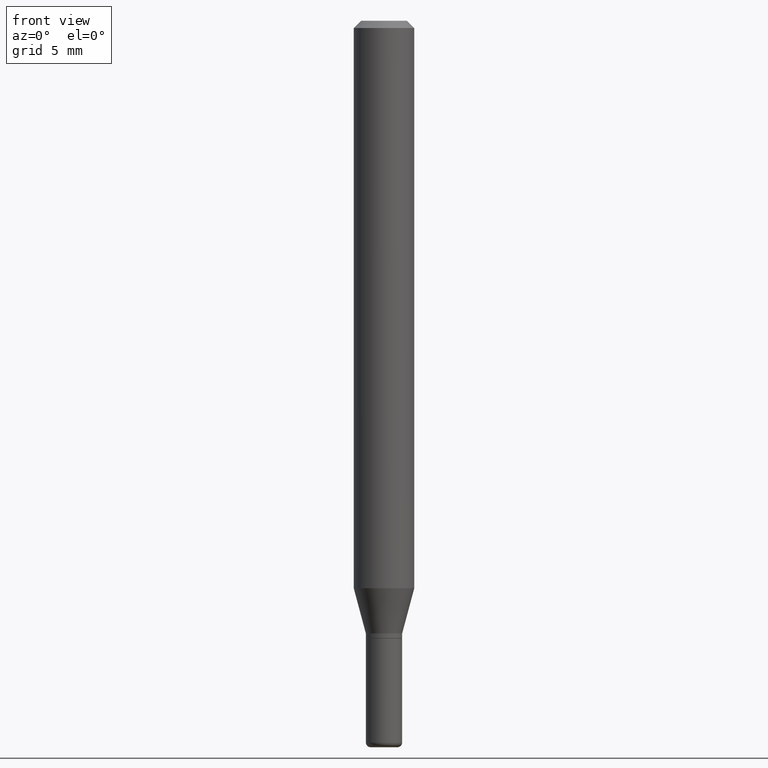
[diagram: clean part render]
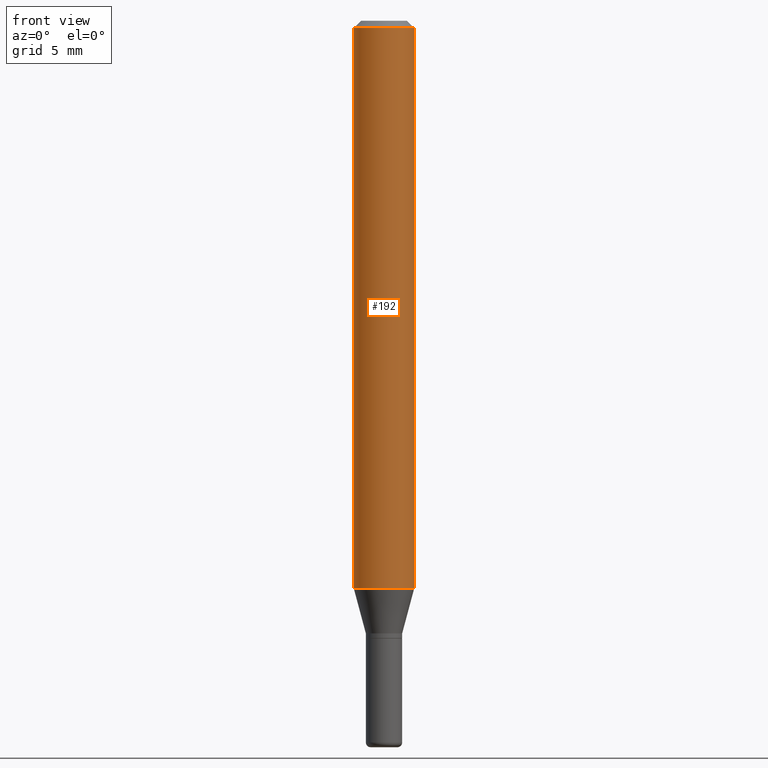
[diagram: same view with one face highlighted and labeled with its STEP entity id]
A machine part, front view. The second image highlights one B-rep face of the part: STEP entity #192.
In plain terms, the highlighted cylindrical surface (edge-blend (fillet) strip) has radius 1.5875 mm, axis along (-0, 0, 1).
Its self-contained STEP definition (entity closure, byte-faithful):
#5 = CARTESIAN_POINT ( 'NONE',  ( 3.668203209277632395E-31, -5.237222008264614861E-17, -0.01499999999999970281 ) ) ;
#6 = ORIENTED_EDGE ( 'NONE', *, *, #298, .F. ) ;
#25 = DIRECTION ( 'NONE',  ( -2.445468806185136597E-29, 3.491481338843145583E-15, 1.000000000000000000 ) ) ;
#31 = DIRECTION ( 'NONE',  ( 1.000000000000000000, -6.982962677686266711E-15, 4.876176775795935793E-29 ) ) ;
#34 = EDGE_CURVE ( 'NONE', #410, #451, #80, .T. ) ;
#41 = ORIENTED_EDGE ( 'NONE', *, *, #352, .F. ) ;
#42 = CARTESIAN_POINT ( 'NONE',  ( -0.06250000000000000000, 4.440892098500626162E-16, -3.074334431409316114E-30 ) ) ;
#46 = DIRECTION ( 'NONE',  ( 1.000000000000000000, -6.982962677686266711E-15, 0.000000000000000000 ) ) ;
#72 = VERTEX_POINT ( 'NONE', #383 ) ;
#80 = LINE ( 'NONE', #348, #406 ) ;
#95 = CIRCLE ( 'NONE', #379, 0.06250000000000000000 ) ;
#110 = FACE_OUTER_BOUND ( 'NONE', #355, .T. ) ;
#172 = VECTOR ( 'NONE', #354, 39.37007874015748143 ) ;
#192 = ADVANCED_FACE ( 'NONE', ( #110 ), #271, .T. ) ;
#194 = ORIENTED_EDGE ( 'NONE', *, *, #34, .T. ) ;
#203 = CARTESIAN_POINT ( 'NONE',  ( 2.865352693999004031E-29, -4.090964249880548061E-15, -1.171698729810777939 ) ) ;
#233 = DIRECTION ( 'NONE',  ( -2.445468806185136877E-29, 3.491481338843145188E-15, 1.000000000000000000 ) ) ;
#237 = DIRECTION ( 'NONE',  ( 1.000000000000000000, -6.982962677686262766E-15, 0.000000000000000000 ) ) ;
#243 = ORIENTED_EDGE ( 'NONE', *, *, #330, .T. ) ;
#249 = DIRECTION ( 'NONE',  ( -2.445468806185136597E-29, 3.491481338843145583E-15, 1.000000000000000000 ) ) ;
#260 = CARTESIAN_POINT ( 'NONE',  ( -0.06250000000000000000, -3.646875040030485445E-15, -1.171698729810777939 ) ) ;
#269 = AXIS2_PLACEMENT_3D ( 'NONE', #384, #25, #31 ) ;
#271 = CYLINDRICAL_SURFACE ( 'NONE', #269, 0.06250000000000000000 ) ;
#298 = EDGE_CURVE ( 'NONE', #511, #72, #480, .T. ) ;
#330 = EDGE_CURVE ( 'NONE', #511, #410, #95, .T. ) ;
#348 = CARTESIAN_POINT ( 'NONE',  ( 0.06250000000000000000, -4.364351673553916694E-16, 3.047610484872459871E-30 ) ) ;
#352 = EDGE_CURVE ( 'NONE', #72, #451, #453, .T. ) ;
#354 = DIRECTION ( 'NONE',  ( -2.445468806185136877E-29, 3.491481338843145188E-15, 1.000000000000000000 ) ) ;
#355 = EDGE_LOOP ( 'NONE', ( #6, #243, #194, #41 ) ) ;
#362 = DIRECTION ( 'NONE',  ( -2.445468806185136597E-29, 3.491481338843145583E-15, 1.000000000000000000 ) ) ;
#378 = CARTESIAN_POINT ( 'NONE',  ( 0.06250000000000000000, -4.527399417235938941E-15, -1.171698729810777939 ) ) ;
#379 = AXIS2_PLACEMENT_3D ( 'NONE', #203, #362, #237 ) ;
#383 = CARTESIAN_POINT ( 'NONE',  ( -0.06250000000000000000, -1.627579025131534165E-15, -0.01499999999999970281 ) ) ;
#384 = CARTESIAN_POINT ( 'NONE',  ( 0.000000000000000000, 0.000000000000000000, 0.000000000000000000 ) ) ;
#406 = VECTOR ( 'NONE', #233, 39.37007874015748143 ) ;
#410 = VERTEX_POINT ( 'NONE', #378 ) ;
#451 = VERTEX_POINT ( 'NONE', #494 ) ;
#453 = CIRCLE ( 'NONE', #467, 0.06250000000000000000 ) ;
#467 = AXIS2_PLACEMENT_3D ( 'NONE', #5, #249, #46 ) ;
#480 = LINE ( 'NONE', #42, #172 ) ;
#494 = CARTESIAN_POINT ( 'NONE',  ( 0.06250000000000000000, -4.888073874380378612E-16, -0.01499999999999970281 ) ) ;
#511 = VERTEX_POINT ( 'NONE', #260 ) ;